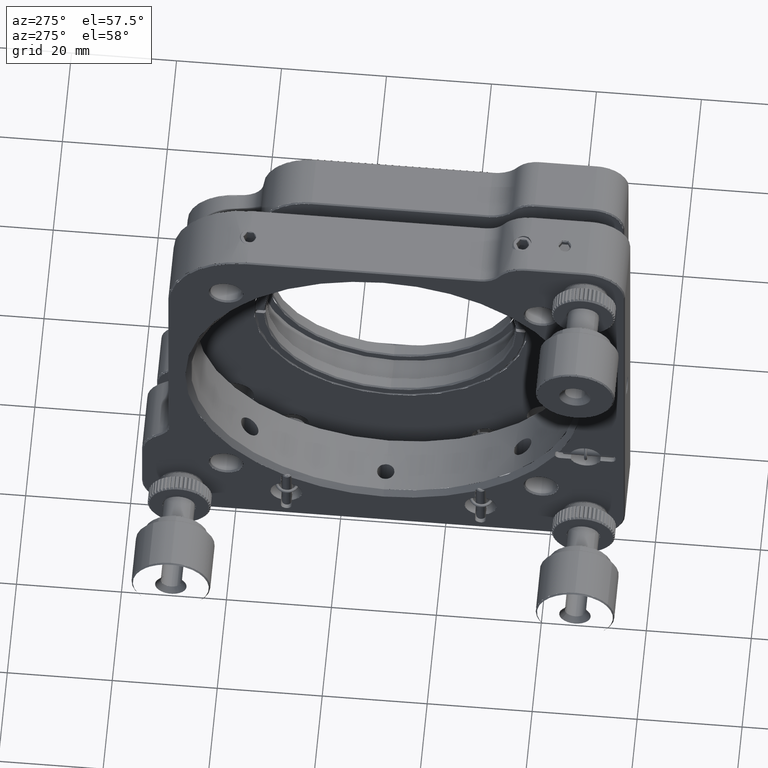
[diagram: clean part render]
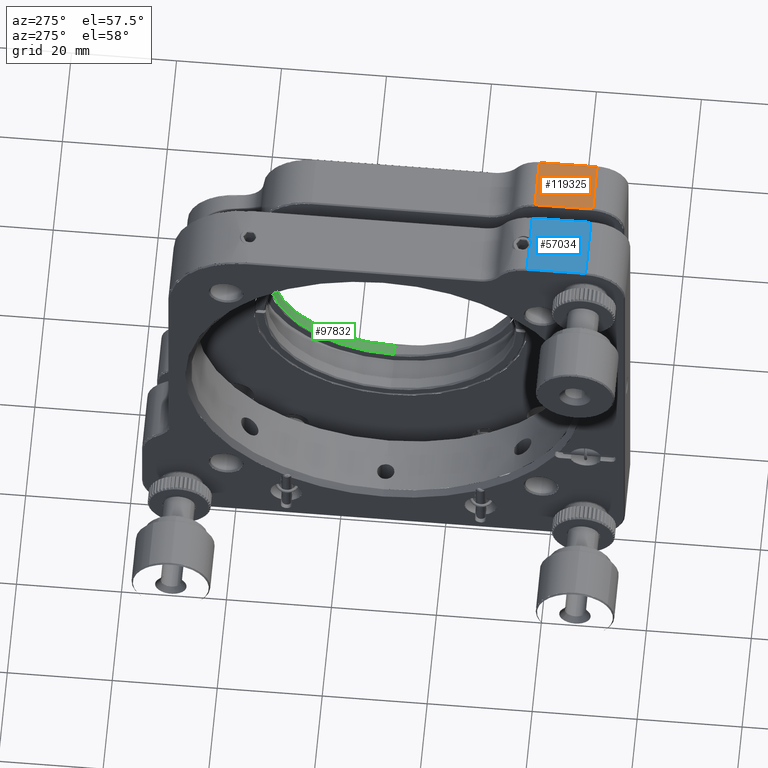
[diagram: same view with three faces highlighted in distinct colors, each labeled with its STEP entity id]
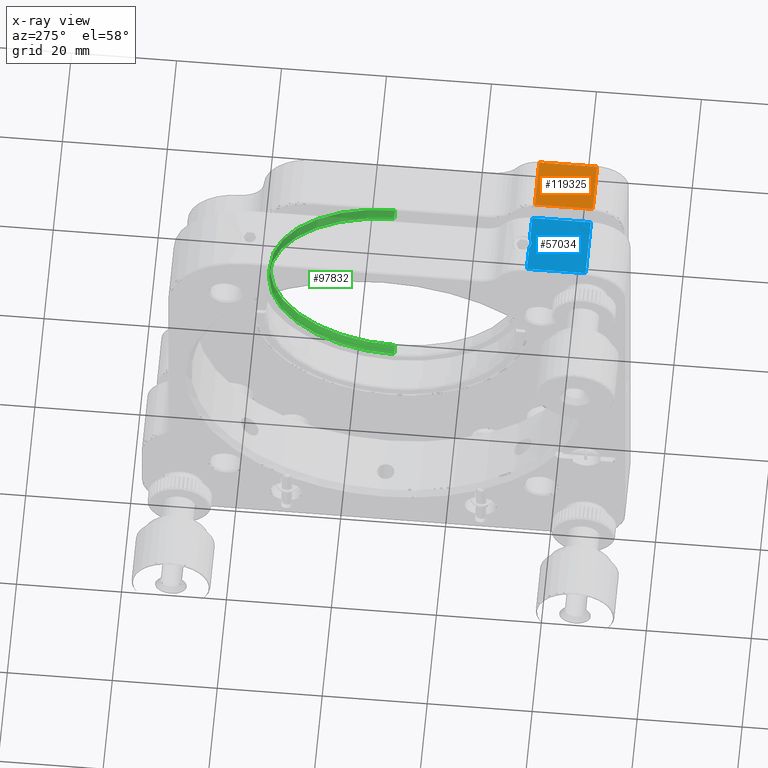
[diagram: x-ray of the same camera — body ghosted, the three highlighted faces saturated]
A machine part, auxiliary view with three faces highlighted in distinct colors.
The next image is the same camera in x-ray (body ghosted, the three faces saturated) — at least one of them is partly hidden behind the body in this view.
Their STEP definitions:

[orange] entity #119325 — the highlighted planar face has unit normal (0, 0, 1).
#3507 = ORIENTED_EDGE ( 'NONE', *, *, #15543, .T. ) ;
#11312 = PLANE ( 'NONE',  #104864 ) ;
#15431 = CARTESIAN_POINT ( 'NONE',  ( -5.080910080472739843, -41.23193251175955254, 99.50000000000000000 ) ) ;
#15543 = EDGE_CURVE ( 'NONE', #40975, #116043, #98693, .T. ) ;
#20386 = DIRECTION ( 'NONE',  ( 0.000000000000000000, 0.000000000000000000, 1.000000000000000000 ) ) ;
#22500 = VERTEX_POINT ( 'NONE', #31546 ) ;
#24797 = ORIENTED_EDGE ( 'NONE', *, *, #72578, .T. ) ;
#25393 = VECTOR ( 'NONE', #98494, 1000.000000000000000 ) ;
#27955 = EDGE_LOOP ( 'NONE', ( #69276, #3507, #24797, #68777 ) ) ;
#30695 = EDGE_CURVE ( 'NONE', #62990, #40975, #117898, .T. ) ;
#31546 = CARTESIAN_POINT ( 'NONE',  ( -5.080910080472739843, -46.73193251175950280, 99.50000000000000000 ) ) ;
#35481 = CARTESIAN_POINT ( 'NONE',  ( 4.419089919527245058, -46.73193251175950280, 99.50000000000000000 ) ) ;
#39710 = FACE_OUTER_BOUND ( 'NONE', #27955, .T. ) ;
#40975 = VERTEX_POINT ( 'NONE', #112565 ) ;
#41836 = VECTOR ( 'NONE', #105995, 1000.000000000000000 ) ;
#44090 = CARTESIAN_POINT ( 'NONE',  ( 4.419089919527245058, -41.23193251175955254, 99.50000000000000000 ) ) ;
#52301 = DIRECTION ( 'NONE',  ( 0.000000000000000000, -1.000000000000000000, 0.000000000000000000 ) ) ;
#56662 = CARTESIAN_POINT ( 'NONE',  ( -6.032110080472739888, -47.83313251175950143, 99.50000000000000000 ) ) ;
#57526 = VECTOR ( 'NONE', #119510, 1000.000000000000000 ) ;
#60796 = LINE ( 'NONE', #15431, #67437 ) ;
#62990 = VERTEX_POINT ( 'NONE', #35481 ) ;
#67437 = VECTOR ( 'NONE', #52301, 1000.000000000000000 ) ;
#68777 = ORIENTED_EDGE ( 'NONE', *, *, #69247, .T. ) ;
#69247 = EDGE_CURVE ( 'NONE', #22500, #62990, #82610, .T. ) ;
#69276 = ORIENTED_EDGE ( 'NONE', *, *, #30695, .T. ) ;
#72578 = EDGE_CURVE ( 'NONE', #116043, #22500, #60796, .T. ) ;
#76587 = DIRECTION ( 'NONE',  ( 1.000000000000000000, 0.000000000000000000, 0.000000000000000000 ) ) ;
#82610 = LINE ( 'NONE', #111583, #57526 ) ;
#97951 = CARTESIAN_POINT ( 'NONE',  ( -5.080910080472739843, -35.73193251175955254, 99.50000000000000000 ) ) ;
#98494 = DIRECTION ( 'NONE',  ( 0.000000000000000000, 1.000000000000000000, 0.000000000000000000 ) ) ;
#98693 = LINE ( 'NONE', #115721, #41836 ) ;
#104864 = AXIS2_PLACEMENT_3D ( 'NONE', #56662, #20386, #76587 ) ;
#105995 = DIRECTION ( 'NONE',  ( -1.000000000000000000, 0.000000000000000000, 0.000000000000000000 ) ) ;
#111583 = CARTESIAN_POINT ( 'NONE',  ( -0.3309100804727470035, -46.73193251175950280, 99.50000000000000000 ) ) ;
#112565 = CARTESIAN_POINT ( 'NONE',  ( 4.419089919527245058, -35.73193251175955254, 99.50000000000000000 ) ) ;
#115721 = CARTESIAN_POINT ( 'NONE',  ( -0.3309100804727470035, -35.73193251175955254, 99.50000000000000000 ) ) ;
#116043 = VERTEX_POINT ( 'NONE', #97951 ) ;
#117898 = LINE ( 'NONE', #44090, #25393 ) ;
#119325 = ADVANCED_FACE ( 'NONE', ( #39710 ), #11312, .T. ) ;
#119510 = DIRECTION ( 'NONE',  ( 1.000000000000000000, 0.000000000000000000, 0.000000000000000000 ) ) ;

[blue] entity #57034 — the highlighted planar face has unit normal (0, 0, 1).
#162 = CARTESIAN_POINT ( 'NONE',  ( -16.24244344830840703, -43.08822440362870765, 101.0000000000000142 ) ) ;
#1338 = CARTESIAN_POINT ( 'NONE',  ( -13.91435669365680639, -35.60651150631332484, 101.0000000000000000 ) ) ;
#2836 = EDGE_CURVE ( 'NONE', #85165, #40160, #91998, .T. ) ;
#3127 = CARTESIAN_POINT ( 'NONE',  ( -15.27954198893115212, -35.82213624281497033, 101.0000000000000000 ) ) ;
#5359 = CARTESIAN_POINT ( 'NONE',  ( -15.82701457598214034, -40.91187146689358656, 101.0000000000000142 ) ) ;
#5538 = VECTOR ( 'NONE', #13621, 1000.000000000000000 ) ;
#6573 = DIRECTION ( 'NONE',  ( 0.000000000000000000, 0.000000000000000000, 1.000000000000000000 ) ) ;
#7148 = CARTESIAN_POINT ( 'NONE',  ( -13.34004504500651045, -41.52278791750648423, 100.9999999999999716 ) ) ;
#7461 = CARTESIAN_POINT ( 'NONE',  ( -13.22748581901663023, -42.63518007111326824, 101.0000000000000284 ) ) ;
#7755 = CARTESIAN_POINT ( 'NONE',  ( -14.63421988912883087, -40.58187145460702538, 101.0000000000000426 ) ) ;
#8072 = CARTESIAN_POINT ( 'NONE',  ( -14.27348498784811248, -43.78586897063598826, 101.0000000000000284 ) ) ;
#8370 = CARTESIAN_POINT ( 'NONE',  ( -13.18313488073566120, -42.13281594516405448, 101.0000000000000000 ) ) ;
#8499 = EDGE_CURVE ( 'NONE', #58107, #97007, #57135, .T. ) ;
#8762 = EDGE_CURVE ( 'NONE', #82342, #90393, #89754, .T. ) ;
#9357 = DIRECTION ( 'NONE',  ( 0.000000000000000000, -1.000000000000000000, 0.000000000000000000 ) ) ;
#9860 = CARTESIAN_POINT ( 'NONE',  ( -16.32177511593897279, -42.94107710601208083, 101.0000000000000000 ) ) ;
#11052 = CARTESIAN_POINT ( 'NONE',  ( -16.27138226754468775, -43.03846007459171119, 101.0000000000000142 ) ) ;
#11653 = CARTESIAN_POINT ( 'NONE',  ( -16.07769072170644620, -43.31865760029122470, 100.9999999999999858 ) ) ;
#13621 = DIRECTION ( 'NONE',  ( 0.000000000000000000, 1.000000000000000000, 0.000000000000000000 ) ) ;
#13874 = CARTESIAN_POINT ( 'NONE',  ( -16.46943252125913304, -42.03126798210232806, 101.0000000000000142 ) ) ;
#14064 = CARTESIAN_POINT ( 'NONE',  ( -16.48091008047274997, -42.23193251175950280, 101.0000000000000000 ) ) ;
#16225 = CARTESIAN_POINT ( 'NONE',  ( -14.88008262830873463, -40.58194777604759906, 101.0000000000000426 ) ) ;
#16531 = CARTESIAN_POINT ( 'NONE',  ( -13.25643080051965406, -42.73732565203402345, 100.9999999999999858 ) ) ;
#16651 = AXIS2_PLACEMENT_3D ( 'NONE', #62207, #6573, #26518 ) ;
#16830 = CARTESIAN_POINT ( 'NONE',  ( -13.18091008047274570, -42.18223588600778129, 100.9999999999999716 ) ) ;
#17044 = VECTOR ( 'NONE', #9357, 1000.000000000000000 ) ;
#17144 = CARTESIAN_POINT ( 'NONE',  ( -14.12176548622241334, -43.72279754722701028, 101.0000000000000284 ) ) ;
#18342 = CARTESIAN_POINT ( 'NONE',  ( -14.78173753263651058, -43.88191724747206734, 101.0000000000000142 ) ) ;
#19514 = CARTESIAN_POINT ( 'NONE',  ( -14.46706508171026151, -35.85106047328577716, 101.0000000000000284 ) ) ;
#19522 = CARTESIAN_POINT ( 'NONE',  ( -15.63956295961261134, -43.67454494680374921, 101.0000000000000142 ) ) ;
#20126 = CARTESIAN_POINT ( 'NONE',  ( -16.34527501510425296, -42.88921996068322073, 101.0000000000000284 ) ) ;
#21902 = CARTESIAN_POINT ( 'NONE',  ( -15.63932486222950224, -35.67095333511800703, 101.0000000000000284 ) ) ;
#22586 = ORIENTED_EDGE ( 'NONE', *, *, #22794, .T. ) ;
#22794 = EDGE_CURVE ( 'NONE', #90393, #82342, #96972, .T. ) ;
#22934 = CARTESIAN_POINT ( 'NONE',  ( -16.47861456863002871, -42.13134766092900207, 101.0000000000000000 ) ) ;
#23535 = CARTESIAN_POINT ( 'NONE',  ( -16.32473219402043796, -41.52261311046932946, 101.0000000000000000 ) ) ;
#25229 = EDGE_CURVE ( 'NONE', #97007, #67130, #60169, .T. ) ;
#25303 = PLANE ( 'NONE',  #16651 ) ;
#26495 = CARTESIAN_POINT ( 'NONE',  ( -13.19203408178730008, -42.03452943329249081, 101.0000000000000000 ) ) ;
#26518 = DIRECTION ( 'NONE',  ( 1.000000000000000000, 0.000000000000000000, 0.000000000000000000 ) ) ;
#26802 = CARTESIAN_POINT ( 'NONE',  ( -13.18091008047272084, -42.23193251175950280, 101.0000000000000000 ) ) ;
#27097 = CARTESIAN_POINT ( 'NONE',  ( -13.21772360288288439, -41.88169867606392671, 101.0000000000000000 ) ) ;
#27394 = CARTESIAN_POINT ( 'NONE',  ( -13.33708796691978549, -42.94125191303911748, 101.0000000000000142 ) ) ;
#29764 = CARTESIAN_POINT ( 'NONE',  ( -13.98366689074322800, -35.65037948037167581, 101.0000000000000284 ) ) ;
#29774 = CARTESIAN_POINT ( 'NONE',  ( -16.48091008047274642, -42.28162913751062746, 101.0000000000000142 ) ) ;
#30956 = CARTESIAN_POINT ( 'NONE',  ( -15.81480702800714866, -35.55648783209625208, 101.0000000000000000 ) ) ;
#32136 = VERTEX_POINT ( 'NONE', #59868 ) ;
#32345 = CARTESIAN_POINT ( 'NONE',  ( -9.080910080472710533, -41.14421017192790231, 101.0000000000000000 ) ) ;
#33187 = CARTESIAN_POINT ( 'NONE',  ( -15.63743764330306441, -40.79146032468676708, 101.0000000000000000 ) ) ;
#34189 = CARTESIAN_POINT ( 'NONE',  ( -14.83091008047272119, -35.55648783209625208, 101.0000000000000000 ) ) ;
#34963 = CARTESIAN_POINT ( 'NONE',  ( -13.83377077344550443, -40.91245975977905402, 101.0000000000000000 ) ) ;
#34986 = FACE_OUTER_BOUND ( 'NONE', #60854, .T. ) ;
#35374 = CARTESIAN_POINT ( 'NONE',  ( -20.58091008047275139, -41.14421017192790231, 101.0000000000000000 ) ) ;
#35572 = CARTESIAN_POINT ( 'NONE',  ( -13.18091008047272084, -42.23193251175950280, 101.0000000000000000 ) ) ;
#35871 = CARTESIAN_POINT ( 'NONE',  ( -13.51143732849205392, -43.22907181878650107, 101.0000000000000000 ) ) ;
#36169 = CARTESIAN_POINT ( 'NONE',  ( -13.27697362159748096, -41.67450741913127388, 100.9999999999999858 ) ) ;
#36194 = FACE_BOUND ( 'NONE', #101376, .T. ) ;
#37506 = ORIENTED_EDGE ( 'NONE', *, *, #8499, .T. ) ;
#37656 = CARTESIAN_POINT ( 'NONE',  ( -13.84701313293830083, -35.55648783209625208, 101.0000000000000000 ) ) ;
#38250 = CARTESIAN_POINT ( 'NONE',  ( -15.74714532462738070, -35.60479953503389083, 101.0000000000000000 ) ) ;
#40160 = VERTEX_POINT ( 'NONE', #111785 ) ;
#41674 = CARTESIAN_POINT ( 'NONE',  ( -16.40538936043104101, -41.72653937149545555, 100.9999999999999858 ) ) ;
#42853 = CARTESIAN_POINT ( 'NONE',  ( -15.54005467472721769, -40.74106747629400616, 101.0000000000000426 ) ) ;
#43749 = CARTESIAN_POINT ( 'NONE',  ( -13.18091008047275281, -42.28230913250776268, 101.0000000000000142 ) ) ;
#44045 = CARTESIAN_POINT ( 'NONE',  ( -14.12159067918994992, -40.73811039820844115, 101.0000000000000000 ) ) ;
#44644 = CARTESIAN_POINT ( 'NONE',  ( -14.42748007070702521, -40.61712464860252680, 101.0000000000000142 ) ) ;
#44740 = ORIENTED_EDGE ( 'NONE', *, *, #8762, .T. ) ;
#44963 = CARTESIAN_POINT ( 'NONE',  ( -14.32654950849376618, -43.80381343505609237, 101.0000000000000142 ) ) ;
#45551 = CARTESIAN_POINT ( 'NONE',  ( -13.58418279109054083, -43.31860424844182944, 101.0000000000000142 ) ) ;
#45840 = CARTESIAN_POINT ( 'NONE',  ( -14.02225720132899767, -40.78932007671835436, 100.9999999999999858 ) ) ;
#47929 = CARTESIAN_POINT ( 'NONE',  ( -16.46263131865808305, -42.48217674901907515, 101.0000000000000000 ) ) ;
#48530 = CARTESIAN_POINT ( 'NONE',  ( -16.48091008047274997, -42.23193251175950280, 101.0000000000000000 ) ) ;
#48607 = DIRECTION ( 'NONE',  ( -1.000000000000000000, 0.000000000000000000, 0.000000000000000000 ) ) ;
#49108 = CARTESIAN_POINT ( 'NONE',  ( -15.44476137049832687, -35.76600941037523995, 101.0000000000000142 ) ) ;
#50432 = CARTESIAN_POINT ( 'NONE',  ( -9.080910080472710533, -35.55648783209625208, 101.0000000000000000 ) ) ;
#52342 = LINE ( 'NONE', #34189, #119365 ) ;
#56168 = VECTOR ( 'NONE', #85561, 1000.000000000000000 ) ;
#56404 = CARTESIAN_POINT ( 'NONE',  ( -16.43164571919303540, -42.63559404877236858, 101.0000000000000000 ) ) ;
#56493 = LINE ( 'NONE', #35374, #17044 ) ;
#56988 = CARTESIAN_POINT ( 'NONE',  ( -15.78135107362898992, -35.58133935085437116, 101.0000000000000142 ) ) ;
#56995 = CARTESIAN_POINT ( 'NONE',  ( -16.44409655806209969, -42.58216634746000295, 101.0000000000000284 ) ) ;
#57034 = ADVANCED_FACE ( 'NONE', ( #36194, #34986 ), #25303, .T. ) ;
#57135 = LINE ( 'NONE', #67407, #56168 ) ;
#57594 = CARTESIAN_POINT ( 'NONE',  ( -14.21597018099098264, -35.76557900324978334, 101.0000000000000142 ) ) ;
#58107 = VERTEX_POINT ( 'NONE', #112982 ) ;
#58198 = CARTESIAN_POINT ( 'NONE',  ( -16.40279100376964649, -42.73629308373635638, 101.0000000000000284 ) ) ;
#59824 = CARTESIAN_POINT ( 'NONE',  ( -16.46287873657588818, -41.98319773671634891, 100.9999999999999858 ) ) ;
#59868 = CARTESIAN_POINT ( 'NONE',  ( -20.58091008047275139, -35.55648783209625208, 101.0000000000000000 ) ) ;
#60169 = LINE ( 'NONE', #32345, #5538 ) ;
#60422 = CARTESIAN_POINT ( 'NONE',  ( -16.48091008047274997, -42.18155589101029079, 101.0000000000000284 ) ) ;
#60854 = EDGE_LOOP ( 'NONE', ( #76583, #83810, #37506, #76662, #106071, #85131 ) ) ;
#62207 = CARTESIAN_POINT ( 'NONE',  ( -21.73211008047274717, -47.85067697972580447, 101.0000000000000000 ) ) ;
#62791 = CARTESIAN_POINT ( 'NONE',  ( -13.39043789340076884, -41.42540494892766390, 101.0000000000000000 ) ) ;
#63096 = CARTESIAN_POINT ( 'NONE',  ( -14.02438251763824972, -43.67240469883019927, 101.0000000000000142 ) ) ;
#63699 = CARTESIAN_POINT ( 'NONE',  ( -14.63149181588359049, -43.87003346375479396, 101.0000000000000142 ) ) ;
#64869 = CARTESIAN_POINT ( 'NONE',  ( -16.15097112533371160, -43.22803700727748577, 101.0000000000000142 ) ) ;
#65155 = CARTESIAN_POINT ( 'NONE',  ( -15.08098808304222160, -40.60078880687169089, 101.0000000000000142 ) ) ;
#66668 = CARTESIAN_POINT ( 'NONE',  ( -14.65045140636088838, -35.88187235886785231, 101.0000000000000000 ) ) ;
#66675 = CARTESIAN_POINT ( 'NONE',  ( -15.82804938750383172, -43.55140526373679677, 101.0000000000000142 ) ) ;
#66752 = LINE ( 'NONE', #103620, #86766 ) ;
#67130 = VERTEX_POINT ( 'NONE', #50432 ) ;
#67407 = CARTESIAN_POINT ( 'NONE',  ( -14.83091008047272119, -46.73193251175950280, 101.0000000000000000 ) ) ;
#67856 = CARTESIAN_POINT ( 'NONE',  ( -15.01383798094729016, -35.87416168459002108, 100.9999999999999858 ) ) ;
#72165 = CARTESIAN_POINT ( 'NONE',  ( -13.97461818860463545, -43.64346587959566648, 101.0000000000000000 ) ) ;
#72453 = CARTESIAN_POINT ( 'NONE',  ( -13.41937671263865184, -41.37564061988756947, 101.0000000000000426 ) ) ;
#72754 = CARTESIAN_POINT ( 'NONE',  ( -14.55566844360084033, -43.85902005979550466, 100.9999999999999716 ) ) ;
#73022 = CARTESIAN_POINT ( 'NONE',  ( -9.080910080472710533, -46.73193251175950280, 101.0000000000000000 ) ) ;
#73061 = CARTESIAN_POINT ( 'NONE',  ( -13.58412943923980798, -41.14520742322607560, 101.0000000000000142 ) ) ;
#74243 = CARTESIAN_POINT ( 'NONE',  ( -15.10615171734289852, -40.60484496372318119, 101.0000000000000284 ) ) ;
#74544 = CARTESIAN_POINT ( 'NONE',  ( -15.23434009026131797, -43.84674037490623277, 101.0000000000000000 ) ) ;
#75151 = CARTESIAN_POINT ( 'NONE',  ( -15.54022948174406515, -43.72575462531565194, 100.9999999999999716 ) ) ;
#76583 = ORIENTED_EDGE ( 'NONE', *, *, #106686, .T. ) ;
#76662 = ORIENTED_EDGE ( 'NONE', *, *, #25229, .T. ) ;
#76915 = CARTESIAN_POINT ( 'NONE',  ( -14.13575961671666548, -35.73085110434925582, 100.9999999999999858 ) ) ;
#77964 = CARTESIAN_POINT ( 'NONE',  ( -16.48091008047274997, -42.23193251175950280, 101.0000000000000000 ) ) ;
#79151 = CARTESIAN_POINT ( 'NONE',  ( -16.15038283245434059, -41.23479320473334298, 101.0000000000000568 ) ) ;
#79761 = CARTESIAN_POINT ( 'NONE',  ( -15.48819752939573213, -40.71756757712766017, 100.9999999999999716 ) ) ;
#80643 = CARTESIAN_POINT ( 'NONE',  ( -13.19238763968634309, -42.43259704141522803, 101.0000000000000000 ) ) ;
#80939 = CARTESIAN_POINT ( 'NONE',  ( -13.19918884228789757, -41.98168827449495666, 100.9999999999999858 ) ) ;
#81552 = CARTESIAN_POINT ( 'NONE',  ( -15.00365604690717980, -40.59082397278797316, 101.0000000000000142 ) ) ;
#81861 = CARTESIAN_POINT ( 'NONE',  ( -14.48067624477640614, -43.84511898934958651, 101.0000000000000284 ) ) ;
#82342 = VERTEX_POINT ( 'NONE', #117449 ) ;
#82451 = CARTESIAN_POINT ( 'NONE',  ( -14.42724854346199237, -43.83266815048013143, 101.0000000000000284 ) ) ;
#83049 = CARTESIAN_POINT ( 'NONE',  ( -16.38484653934724378, -42.78935760438994862, 101.0000000000000000 ) ) ;
#83810 = ORIENTED_EDGE ( 'NONE', *, *, #99451, .T. ) ;
#84223 = CARTESIAN_POINT ( 'NONE',  ( -15.67723423737725774, -35.64893723423571714, 101.0000000000000142 ) ) ;
#84836 = CARTESIAN_POINT ( 'NONE',  ( -16.47868528020983447, -42.33104907835436848, 101.0000000000000000 ) ) ;
#85131 = ORIENTED_EDGE ( 'NONE', *, *, #2836, .T. ) ;
#85165 = VERTEX_POINT ( 'NONE', #85438 ) ;
#85438 = CARTESIAN_POINT ( 'NONE',  ( -13.84701313293830083, -35.55648783209625208, 101.0000000000000000 ) ) ;
#85561 = DIRECTION ( 'NONE',  ( 1.000000000000000000, 0.000000000000000000, 0.000000000000000000 ) ) ;
#85997 = CARTESIAN_POINT ( 'NONE',  ( -15.19004780541924582, -35.84487842757423692, 100.9999999999999858 ) ) ;
#86766 = VECTOR ( 'NONE', #48607, 1000.000000000000000 ) ;
#87637 = CARTESIAN_POINT ( 'NONE',  ( -16.43433434192845155, -41.82868495240563078, 101.0000000000000284 ) ) ;
#88221 = CARTESIAN_POINT ( 'NONE',  ( -16.27352251551268836, -41.42327963261467971, 100.9999999999999716 ) ) ;
#88819 = CARTESIAN_POINT ( 'NONE',  ( -15.91763516900519093, -40.98515187052542075, 101.0000000000000426 ) ) ;
#89412 = CARTESIAN_POINT ( 'NONE',  ( -15.23457161748701161, -40.63119687303952077, 101.0000000000000426 ) ) ;
#89754 = B_SPLINE_CURVE_WITH_KNOTS ( 'NONE', 3,
 ( #26802, #43749, #90299, #80643, #99971, #7461, #16531, #27394, #117565, #35871, #45551, #118165, #118765, #72165, #63096, #17144, #90910, #8072, #44963, #82451, #81861, #72754, #109658, #63699, #110253, #101162, #18342, #94479, #74544, #75151, #19522, #66675, #110857, #11653, #64869, #162, #11052, #9860, #20126, #83049, #58198, #56404, #56995, #47929, #93286, #84836, #29774, #48530 ),
 .UNSPECIFIED., .F., .F.,
 ( 4, 2, 2, 2, 2, 2, 2, 2, 2, 2, 2, 2, 2, 2, 2, 2, 2, 2, 2, 2, 2, 2, 2, 4 ),
 ( 0.000000000000000000, 0.03124999999999877875, 0.06249999999999755751, 0.1249999999999949346, 0.1874999999999923117, 0.2499999999999896749, 0.3124999999999870659, 0.3437499999999872324, 0.3749999999999873990, 0.4062499999999875655, 0.4374999999999877320, 0.4531249999999872879, 0.4687499999999868439, 0.4999999999999870104, 0.6249999999999867883, 0.6874999999999877875, 0.7499999999999888978, 0.8124999999999900080, 0.8437499999999916733, 0.8749999999999933387, 0.9062499999999950040, 0.9374999999999966693, 0.9687499999999983347, 1.000000000000000000 ),
 .UNSPECIFIED. ) ;
#89997 = CARTESIAN_POINT ( 'NONE',  ( -15.18114391617252856, -40.61874603417005147, 101.0000000000000284 ) ) ;
#90299 = CARTESIAN_POINT ( 'NONE',  ( -13.18320559231547051, -42.33251736258856113, 101.0000000000000000 ) ) ;
#90393 = VERTEX_POINT ( 'NONE', #14064 ) ;
#90910 = CARTESIAN_POINT ( 'NONE',  ( -14.17362263154316615, -43.74629744638905748, 101.0000000000000142 ) ) ;
#91036 = DIRECTION ( 'NONE',  ( -1.000000000000000000, 0.000000000000000000, 0.000000000000000000 ) ) ;
#91794 = CARTESIAN_POINT ( 'NONE',  ( -13.51084903560858308, -41.23582801624689154, 101.0000000000000142 ) ) ;
#91998 = B_SPLINE_CURVE_WITH_KNOTS ( 'NONE', 3,
 ( #37656, #1338, #29764, #76915, #57594, #19514, #66668, #92680, #67856, #85997, #3127, #49108, #94471, #21902, #84223, #38250, #56988, #30956 ),
 .UNSPECIFIED., .F., .F.,
 ( 4, 2, 2, 2, 2, 2, 2, 2, 4 ),
 ( 0.000000000000000000, 0.1249999999999985012, 0.2499999999999970024, 0.4999999999999971134, 0.6249999999999971134, 0.7499999999999972244, 0.8749999999999972244, 0.9374999999999986677, 1.000000000000000000 ),
 .UNSPECIFIED. ) ;
#92680 = CARTESIAN_POINT ( 'NONE',  ( -14.92113941752868023, -35.88196258820529039, 101.0000000000000000 ) ) ;
#93286 = CARTESIAN_POINT ( 'NONE',  ( -16.46978607915814763, -42.42933559022705481, 101.0000000000000284 ) ) ;
#94471 = CARTESIAN_POINT ( 'NONE',  ( -15.52767099718755617, -35.72993920684539404, 100.9999999999999716 ) ) ;
#94479 = CARTESIAN_POINT ( 'NONE',  ( -15.02760027181770752, -43.88199356890933700, 101.0000000000000284 ) ) ;
#96972 = B_SPLINE_CURVE_WITH_KNOTS ( 'NONE', 3,
 ( #77964, #60422, #22934, #13874, #59824, #87637, #41674, #23535, #88221, #79151, #97855, #88819, #5359, #116077, #33187, #42853, #79761, #116675, #107532, #89412, #89997, #74243, #65155, #109356, #81552, #100855, #16225, #7755, #44644, #44045, #45840, #34963, #118464, #73061, #91794, #72453, #62791, #7148, #109960, #36169, #99664, #101434, #27097, #80939, #26495, #8370, #16830, #35572 ),
 .UNSPECIFIED., .F., .F.,
 ( 4, 2, 2, 2, 2, 2, 2, 2, 2, 2, 2, 2, 2, 2, 2, 2, 2, 2, 2, 2, 2, 2, 2, 4 ),
 ( 0.000000000000000000, 0.03124999999999865385, 0.06249999999999730771, 0.1249999999999949762, 0.1874999999999926448, 0.2499999999999903411, 0.3124999999999879541, 0.3437499999999876210, 0.3749999999999863998, 0.4062499999999851785, 0.4374999999999839018, 0.4531249999999838463, 0.4687499999999837907, 0.4999999999999840128, 0.6249999999999859002, 0.6874999999999868994, 0.7499999999999878986, 0.8124999999999888978, 0.8437499999999907851, 0.8749999999999925615, 0.9062499999999944489, 0.9374999999999963363, 0.9687499999999982236, 1.000000000000000000 ),
 .UNSPECIFIED. ) ;
#97007 = VERTEX_POINT ( 'NONE', #73022 ) ;
#97855 = CARTESIAN_POINT ( 'NONE',  ( -16.07763736985589276, -41.14526077507795065, 101.0000000000000142 ) ) ;
#98278 = EDGE_CURVE ( 'NONE', #67130, #85165, #52342, .T. ) ;
#99451 = EDGE_CURVE ( 'NONE', #32136, #58107, #56493, .T. ) ;
#99664 = CARTESIAN_POINT ( 'NONE',  ( -13.25902915717477271, -41.72757193978593904, 101.0000000000000000 ) ) ;
#99971 = CARTESIAN_POINT ( 'NONE',  ( -13.19894142436976914, -42.48066728680265669, 100.9999999999999858 ) ) ;
#100855 = CARTESIAN_POINT ( 'NONE',  ( -14.93019761519749800, -40.58417279206877737, 101.0000000000000000 ) ) ;
#101162 = CARTESIAN_POINT ( 'NONE',  ( -14.73162254575184704, -43.87969223145091746, 101.0000000000000284 ) ) ;
#101376 = EDGE_LOOP ( 'NONE', ( #44740, #22586 ) ) ;
#101434 = CARTESIAN_POINT ( 'NONE',  ( -13.23017444175348523, -41.82827097474331879, 100.9999999999999858 ) ) ;
#103620 = CARTESIAN_POINT ( 'NONE',  ( -14.83091008047272119, -35.55648783209625208, 101.0000000000000000 ) ) ;
#106071 = ORIENTED_EDGE ( 'NONE', *, *, #98278, .T. ) ;
#106686 = EDGE_CURVE ( 'NONE', #40160, #32136, #66752, .T. ) ;
#107532 = CARTESIAN_POINT ( 'NONE',  ( -15.33527065244816434, -40.66005158846223111, 100.9999999999999716 ) ) ;
#109356 = CARTESIAN_POINT ( 'NONE',  ( -15.03032834505928506, -40.59383155976372848, 101.0000000000000284 ) ) ;
#109658 = CARTESIAN_POINT ( 'NONE',  ( -14.58083207790065217, -43.86307621664680312, 100.9999999999999716 ) ) ;
#109960 = CARTESIAN_POINT ( 'NONE',  ( -13.31654514584195859, -41.57464506283351824, 101.0000000000000000 ) ) ;
#110253 = CARTESIAN_POINT ( 'NONE',  ( -14.65816411403635300, -43.87304105073070559, 100.9999999999999858 ) ) ;
#110857 = CARTESIAN_POINT ( 'NONE',  ( -15.91758181715464282, -43.47865980114337248, 101.0000000000000426 ) ) ;
#111785 = CARTESIAN_POINT ( 'NONE',  ( -15.81480702800714866, -35.55648783209625208, 101.0000000000000000 ) ) ;
#112982 = CARTESIAN_POINT ( 'NONE',  ( -20.58091008047275139, -46.73193251175950280, 101.0000000000000000 ) ) ;
#116077 = CARTESIAN_POINT ( 'NONE',  ( -15.68720197234625324, -40.82039914392623814, 101.0000000000000000 ) ) ;
#116675 = CARTESIAN_POINT ( 'NONE',  ( -15.38833517310390242, -40.67799605288524134, 100.9999999999999858 ) ) ;
#117449 = CARTESIAN_POINT ( 'NONE',  ( -13.18091008047272084, -42.23193251175950280, 101.0000000000000000 ) ) ;
#117565 = CARTESIAN_POINT ( 'NONE',  ( -13.38829764543186407, -43.04058539090345192, 100.9999999999999858 ) ) ;
#118165 = CARTESIAN_POINT ( 'NONE',  ( -13.74418499193930998, -43.47871315299276063, 101.0000000000000000 ) ) ;
#118464 = CARTESIAN_POINT ( 'NONE',  ( -13.74423834379004461, -40.98520522237730290, 100.9999999999999858 ) ) ;
#118765 = CARTESIAN_POINT ( 'NONE',  ( -13.83480558495247514, -43.55199355661945049, 100.9999999999999858 ) ) ;
#119365 = VECTOR ( 'NONE', #91036, 1000.000000000000000 ) ;

[green] entity #97832 — the highlighted cylindrical surface (partial cylindrical patch) has radius 23.8445 mm, axis along (-1, 0, 0).
#913 = CARTESIAN_POINT ( 'NONE',  ( 4.419089919527254828, -8.231932511759529447, 78.84449999999999648 ) ) ;
#3829 = DIRECTION ( 'NONE',  ( 1.000000000000000000, 0.000000000000000000, 0.000000000000000000 ) ) ;
#4337 = CIRCLE ( 'NONE', #108620, 23.84450000000000003 ) ;
#9351 = LINE ( 'NONE', #63177, #45998 ) ;
#9993 = EDGE_CURVE ( 'NONE', #96801, #26425, #92585, .T. ) ;
#14927 = ORIENTED_EDGE ( 'NONE', *, *, #33440, .T. ) ;
#16335 = EDGE_LOOP ( 'NONE', ( #106009, #81757, #29375, #95660, #73751, #55377, #14927, #51273 ) ) ;
#19194 = CIRCLE ( 'NONE', #50095, 23.84449999999999648 ) ;
#19877 = VERTEX_POINT ( 'NONE', #55474 ) ;
#22114 = VERTEX_POINT ( 'NONE', #34848 ) ;
#23905 = CARTESIAN_POINT ( 'NONE',  ( 4.419089919527254828, -8.231932511759540105, 55.00000000000000000 ) ) ;
#24038 = DIRECTION ( 'NONE',  ( 1.000000000000000000, 0.000000000000000000, 0.000000000000000000 ) ) ;
#26054 = CARTESIAN_POINT ( 'NONE',  ( 2.419089919527269927, -8.231932511759529447, 78.84449999999999648 ) ) ;
#26425 = VERTEX_POINT ( 'NONE', #50270 ) ;
#27303 = EDGE_CURVE ( 'NONE', #26425, #50434, #106280, .T. ) ;
#27544 = CIRCLE ( 'NONE', #112603, 23.84450000000000003 ) ;
#29375 = ORIENTED_EDGE ( 'NONE', *, *, #37302, .T. ) ;
#30573 = DIRECTION ( 'NONE',  ( 1.000000000000000000, 0.000000000000000000, 0.000000000000000000 ) ) ;
#32311 = AXIS2_PLACEMENT_3D ( 'NONE', #41946, #106628, #32858 ) ;
#32858 = DIRECTION ( 'NONE',  ( 0.000000000000000000, 0.000000000000000000, 1.000000000000000000 ) ) ;
#32866 = EDGE_CURVE ( 'NONE', #50434, #19877, #78481, .T. ) ;
#33440 = EDGE_CURVE ( 'NONE', #19877, #89998, #4337, .T. ) ;
#34497 = DIRECTION ( 'NONE',  ( 0.000000000000000000, 0.000000000000000000, -1.000000000000000000 ) ) ;
#34848 = CARTESIAN_POINT ( 'NONE',  ( 4.419089919527254828, -8.231932511759529447, 31.15549999999999997 ) ) ;
#35466 = VERTEX_POINT ( 'NONE', #109076 ) ;
#37302 = EDGE_CURVE ( 'NONE', #22114, #96801, #27544, .T. ) ;
#41049 = VECTOR ( 'NONE', #24038, 1000.000000000000000 ) ;
#41946 = CARTESIAN_POINT ( 'NONE',  ( 4.620289919527260203, -8.231932511759540105, 55.00000000000000000 ) ) ;
#45998 = VECTOR ( 'NONE', #100056, 1000.000000000000000 ) ;
#47817 = CARTESIAN_POINT ( 'NONE',  ( 3.419089919527264598, 15.60732461278190009, 54.50000000000000000 ) ) ;
#50095 = AXIS2_PLACEMENT_3D ( 'NONE', #110940, #64956, #54711 ) ;
#50270 = CARTESIAN_POINT ( 'NONE',  ( 3.969089919527275079, 15.60732461278190009, 54.50000000000000000 ) ) ;
#50377 = EDGE_CURVE ( 'NONE', #35466, #22114, #95720, .T. ) ;
#50434 = VERTEX_POINT ( 'NONE', #86664 ) ;
#51273 = ORIENTED_EDGE ( 'NONE', *, *, #64392, .T. ) ;
#52174 = CARTESIAN_POINT ( 'NONE',  ( 4.419089919527254828, -8.231932511759540105, 55.00000000000000000 ) ) ;
#54711 = DIRECTION ( 'NONE',  ( 0.000000000000000000, 0.000000000000000000, 1.000000000000000000 ) ) ;
#55377 = ORIENTED_EDGE ( 'NONE', *, *, #32866, .T. ) ;
#55474 = CARTESIAN_POINT ( 'NONE',  ( 4.419089919527254828, 15.60732461278190009, 55.50000000000000000 ) ) ;
#57960 = AXIS2_PLACEMENT_3D ( 'NONE', #99807, #101575, #34497 ) ;
#58477 = VECTOR ( 'NONE', #75635, 1000.000000000000000 ) ;
#60778 = VERTEX_POINT ( 'NONE', #26054 ) ;
#63177 = CARTESIAN_POINT ( 'NONE',  ( 3.419089919527264598, -8.231932511759529447, 78.84449999999999648 ) ) ;
#64392 = EDGE_CURVE ( 'NONE', #89998, #60778, #9351, .T. ) ;
#64956 = DIRECTION ( 'NONE',  ( -1.000000000000000000, 0.000000000000000000, 0.000000000000000000 ) ) ;
#68672 = DIRECTION ( 'NONE',  ( 0.000000000000000000, 0.000000000000000000, -1.000000000000000000 ) ) ;
#70341 = CYLINDRICAL_SURFACE ( 'NONE', #32311, 23.84449999999999648 ) ;
#70930 = FACE_OUTER_BOUND ( 'NONE', #16335, .T. ) ;
#72707 = EDGE_CURVE ( 'NONE', #60778, #35466, #19194, .T. ) ;
#73751 = ORIENTED_EDGE ( 'NONE', *, *, #27303, .T. ) ;
#75635 = DIRECTION ( 'NONE',  ( -1.000000000000000000, 0.000000000000000000, 0.000000000000000000 ) ) ;
#75992 = VECTOR ( 'NONE', #106581, 1000.000000000000000 ) ;
#78481 = LINE ( 'NONE', #115406, #41049 ) ;
#81757 = ORIENTED_EDGE ( 'NONE', *, *, #50377, .T. ) ;
#86664 = CARTESIAN_POINT ( 'NONE',  ( 3.969089919527275079, 15.60732461278190009, 55.50000000000000000 ) ) ;
#87864 = CARTESIAN_POINT ( 'NONE',  ( 3.419089919527264598, -8.231932511759529447, 31.15549999999999997 ) ) ;
#89998 = VERTEX_POINT ( 'NONE', #913 ) ;
#92585 = LINE ( 'NONE', #47817, #58477 ) ;
#95660 = ORIENTED_EDGE ( 'NONE', *, *, #9993, .T. ) ;
#95720 = LINE ( 'NONE', #87864, #75992 ) ;
#96801 = VERTEX_POINT ( 'NONE', #117818 ) ;
#97832 = ADVANCED_FACE ( 'NONE', ( #70930 ), #70341, .F. ) ;
#99807 = CARTESIAN_POINT ( 'NONE',  ( 3.969089919527275079, -8.231932511759540105, 55.00000000000000000 ) ) ;
#100056 = DIRECTION ( 'NONE',  ( -1.000000000000000000, 0.000000000000000000, 0.000000000000000000 ) ) ;
#101575 = DIRECTION ( 'NONE',  ( 1.000000000000000000, 0.000000000000000000, 0.000000000000000000 ) ) ;
#106009 = ORIENTED_EDGE ( 'NONE', *, *, #72707, .T. ) ;
#106280 = CIRCLE ( 'NONE', #57960, 23.84450000000000003 ) ;
#106581 = DIRECTION ( 'NONE',  ( 1.000000000000000000, 0.000000000000000000, 0.000000000000000000 ) ) ;
#106628 = DIRECTION ( 'NONE',  ( -1.000000000000000000, 0.000000000000000000, 0.000000000000000000 ) ) ;
#108620 = AXIS2_PLACEMENT_3D ( 'NONE', #23905, #30573, #68672 ) ;
#109076 = CARTESIAN_POINT ( 'NONE',  ( 2.419089919527269927, -8.231932511759529447, 31.15549999999999997 ) ) ;
#110940 = CARTESIAN_POINT ( 'NONE',  ( 2.419089919527269927, -8.231932511759540105, 55.00000000000000000 ) ) ;
#112603 = AXIS2_PLACEMENT_3D ( 'NONE', #52174, #3829, #115740 ) ;
#115406 = CARTESIAN_POINT ( 'NONE',  ( 3.419089919527264598, 15.60732461278190009, 55.50000000000000000 ) ) ;
#115740 = DIRECTION ( 'NONE',  ( 0.000000000000000000, 0.000000000000000000, -1.000000000000000000 ) ) ;
#117818 = CARTESIAN_POINT ( 'NONE',  ( 4.419089919527260157, 15.60732461278190009, 54.50000000000000000 ) ) ;